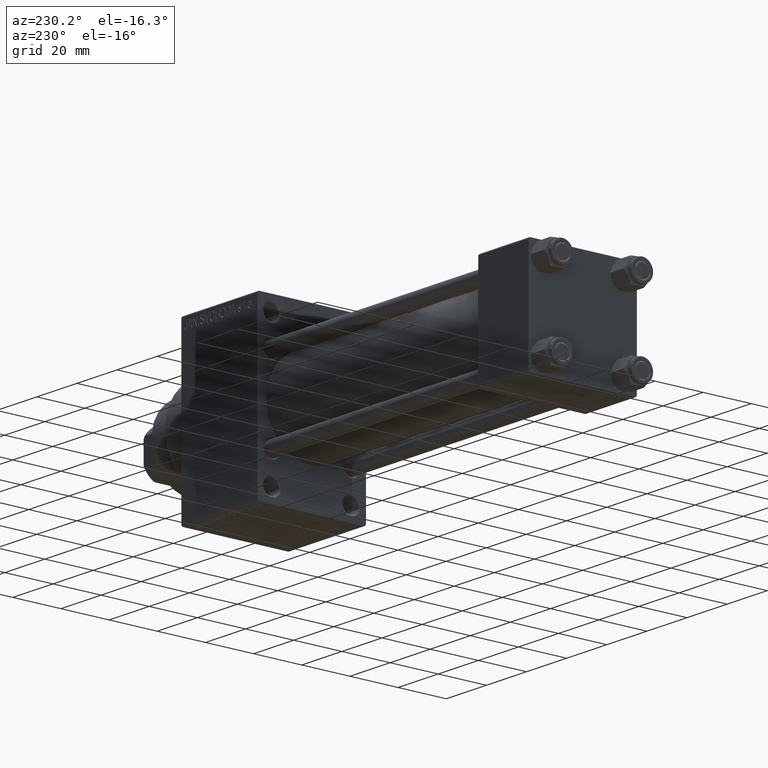
[diagram: clean part render]
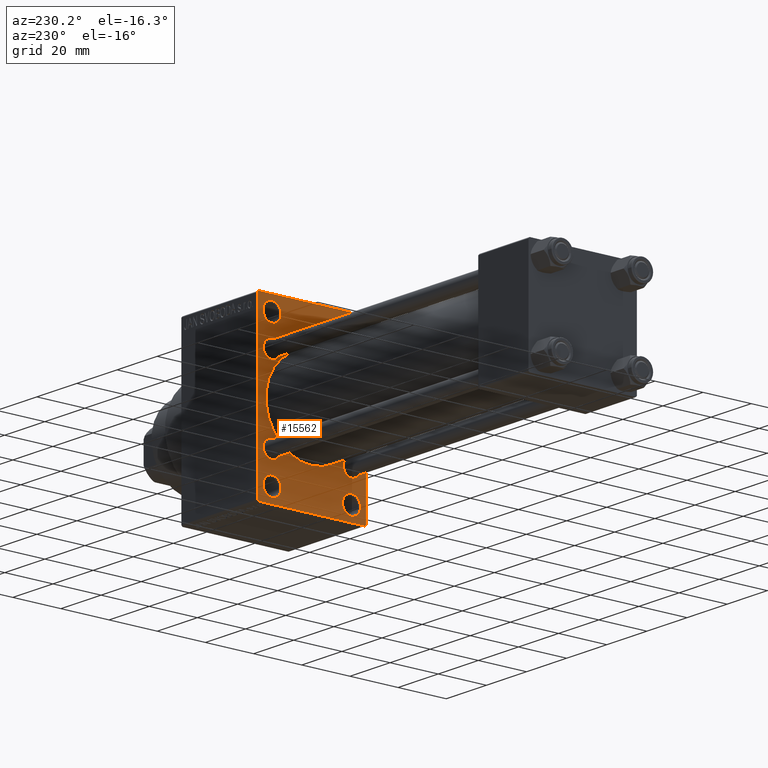
[diagram: same view with one face highlighted and labeled with its STEP entity id]
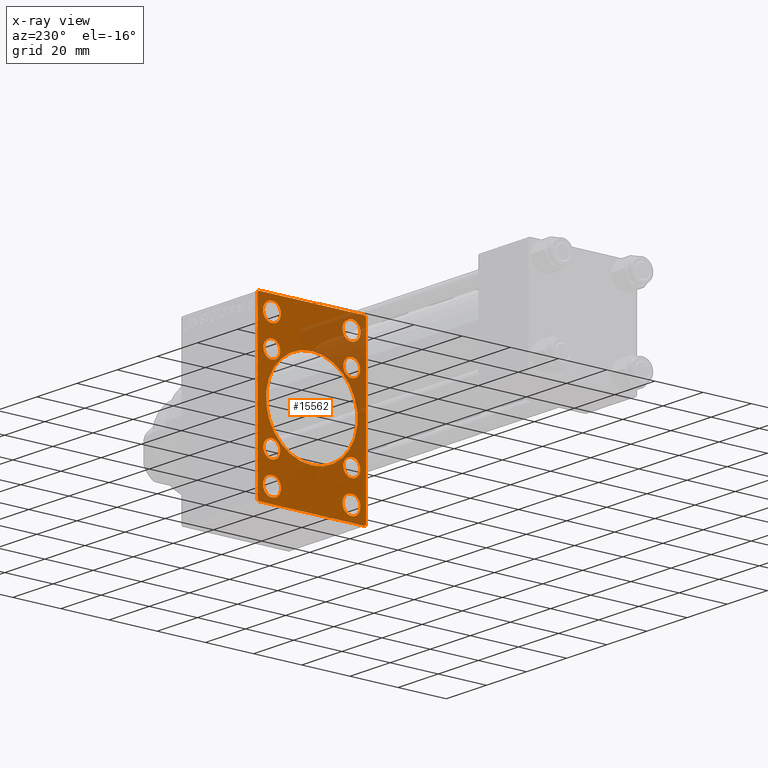
[diagram: x-ray of the same camera — body ghosted, the highlighted face saturated]
A machine part, auxiliary view. The second image highlights one B-rep face of the part: STEP entity #15562.
The next image is the same camera in x-ray: the body ghosted, the highlighted face saturated — about 26% of this face is hidden behind the body in this view.
In plain terms, the highlighted planar face has unit normal (-1, 0, 0).
Its self-contained STEP definition (entity closure, byte-faithful):
#120 = LINE ( 'NONE', #46832, #43800 ) ;
#528 = AXIS2_PLACEMENT_3D ( 'NONE', #10171, #24667, #14204 ) ;
#907 = ORIENTED_EDGE ( 'NONE', *, *, #25941, .T. ) ;
#1032 = EDGE_CURVE ( 'NONE', #6648, #13076, #45790, .T. ) ;
#1408 = ORIENTED_EDGE ( 'NONE', *, *, #33569, .T. ) ;
#1797 = CARTESIAN_POINT ( 'NONE',  ( 135.0000000000000000, 28.49999999999999645, 28.49999999999999645 ) ) ;
#1901 = DIRECTION ( 'NONE',  ( 1.000000000000000000, 0.000000000000000000, 0.000000000000000000 ) ) ;
#1970 = CARTESIAN_POINT ( 'NONE',  ( 135.0000000000000000, -22.00000000000001776, 35.00000000000000000 ) ) ;
#2010 = DIRECTION ( 'NONE',  ( 0.000000000000000000, 0.000000000000000000, 1.000000000000000000 ) ) ;
#2049 = VERTEX_POINT ( 'NONE', #16707 ) ;
#2135 = EDGE_LOOP ( 'NONE', ( #36572, #13854 ) ) ;
#2259 = DIRECTION ( 'NONE',  ( 1.000000000000000000, 0.000000000000000000, 0.000000000000000000 ) ) ;
#2374 = ORIENTED_EDGE ( 'NONE', *, *, #21547, .T. ) ;
#2660 = CIRCLE ( 'NONE', #30045, 3.750000000000006661 ) ;
#2767 = DIRECTION ( 'NONE',  ( -1.000000000000000000, 0.000000000000000000, -0.000000000000000000 ) ) ;
#2940 = CARTESIAN_POINT ( 'NONE',  ( 135.0000000000000000, 16.50000000000000000, 32.75000000000000000 ) ) ;
#2963 = ORIENTED_EDGE ( 'NONE', *, *, #43526, .T. ) ;
#3117 = EDGE_CURVE ( 'NONE', #28699, #42870, #9323, .T. ) ;
#3155 = AXIS2_PLACEMENT_3D ( 'NONE', #45974, #1901, #16435 ) ;
#3344 = CIRCLE ( 'NONE', #20072, 3.750000000000006661 ) ;
#3425 = CARTESIAN_POINT ( 'NONE',  ( 135.0000000000000000, -16.50000000000000000, -28.99999999999999289 ) ) ;
#3782 = VERTEX_POINT ( 'NONE', #8012 ) ;
#4051 = CIRCLE ( 'NONE', #10135, 3.500000000000006661 ) ;
#4099 = DIRECTION ( 'NONE',  ( 1.000000000000000000, 0.000000000000000000, 0.000000000000000000 ) ) ;
#4196 = EDGE_CURVE ( 'NONE', #45407, #44804, #10835, .T. ) ;
#4202 = DIRECTION ( 'NONE',  ( 0.000000000000000000, 0.000000000000000000, 1.000000000000000000 ) ) ;
#4321 = ORIENTED_EDGE ( 'NONE', *, *, #10856, .T. ) ;
#4336 = CARTESIAN_POINT ( 'NONE',  ( 135.0000000000000000, -16.50000000000000000, -28.99999999999999289 ) ) ;
#4574 = AXIS2_PLACEMENT_3D ( 'NONE', #42211, #27196, #34814 ) ;
#4772 = FACE_BOUND ( 'NONE', #6205, .T. ) ;
#4868 = VERTEX_POINT ( 'NONE', #37428 ) ;
#5090 = CARTESIAN_POINT ( 'NONE',  ( 135.0000000000000000, -16.50000000000000000, -25.24999999999998934 ) ) ;
#5343 = CIRCLE ( 'NONE', #29642, 3.750000000000003553 ) ;
#5369 = DIRECTION ( 'NONE',  ( 0.000000000000000000, 0.7071067811865474617, -0.7071067811865474617 ) ) ;
#5556 = CARTESIAN_POINT ( 'NONE',  ( 135.0000000000000000, -28.50000000000062883, 28.49999999999905143 ) ) ;
#5766 = AXIS2_PLACEMENT_3D ( 'NONE', #7516, #37055, #15135 ) ;
#5839 = CARTESIAN_POINT ( 'NONE',  ( 135.0000000000000000, -16.59999999999999076, -16.60000000000000853 ) ) ;
#5955 = EDGE_LOOP ( 'NONE', ( #907, #2374 ) ) ;
#6033 = VECTOR ( 'NONE', #11920, 1000.000000000000000 ) ;
#6205 = EDGE_LOOP ( 'NONE', ( #32259, #40428 ) ) ;
#6648 = VERTEX_POINT ( 'NONE', #39135 ) ;
#6730 = AXIS2_PLACEMENT_3D ( 'NONE', #15054, #4099, #32200 ) ;
#6787 = ORIENTED_EDGE ( 'NONE', *, *, #47059, .T. ) ;
#7516 = CARTESIAN_POINT ( 'NONE',  ( 135.0000000000000000, -16.50000000000000000, 29.00000000000000711 ) ) ;
#7531 = DIRECTION ( 'NONE',  ( 1.000000000000000000, 0.000000000000000000, 0.000000000000000000 ) ) ;
#7676 = CARTESIAN_POINT ( 'NONE',  ( 135.0000000000000000, 21.99999999999999645, 35.00000000000000000 ) ) ;
#7692 = EDGE_CURVE ( 'NONE', #34021, #39647, #23655, .T. ) ;
#8012 = CARTESIAN_POINT ( 'NONE',  ( 135.0000000000000000, -22.50000000000000355, -34.50000000000000000 ) ) ;
#8515 = EDGE_CURVE ( 'NONE', #42709, #35263, #3344, .T. ) ;
#8544 = AXIS2_PLACEMENT_3D ( 'NONE', #30092, #11996, #26500 ) ;
#8622 = CARTESIAN_POINT ( 'NONE',  ( 135.0000000000000000, 16.59999999999999787, -16.60000000000000497 ) ) ;
#8815 = FACE_BOUND ( 'NONE', #5955, .T. ) ;
#9323 = CIRCLE ( 'NONE', #28315, 3.750000000000000000 ) ;
#9383 = CARTESIAN_POINT ( 'NONE',  ( 135.0000000000000000, 22.49999999999999645, 34.50000000000000000 ) ) ;
#9560 = EDGE_CURVE ( 'NONE', #23354, #40723, #15569, .T. ) ;
#9685 = EDGE_CURVE ( 'NONE', #35263, #42709, #2660, .T. ) ;
#9752 = ORIENTED_EDGE ( 'NONE', *, *, #25067, .T. ) ;
#9841 = AXIS2_PLACEMENT_3D ( 'NONE', #31536, #24136, #2010 ) ;
#10134 = CARTESIAN_POINT ( 'NONE',  ( 135.0000000000000000, -16.50000000000000000, 32.75000000000000711 ) ) ;
#10135 = AXIS2_PLACEMENT_3D ( 'NONE', #37299, #7531, #4202 ) ;
#10171 = CARTESIAN_POINT ( 'NONE',  ( 135.0000000000000000, 16.50000000000000000, -28.99999999999999289 ) ) ;
#10195 = VECTOR ( 'NONE', #12019, 1000.000000000000000 ) ;
#10413 = LINE ( 'NONE', #21355, #11837 ) ;
#10835 = CIRCLE ( 'NONE', #43556, 3.500000000000006661 ) ;
#10856 = EDGE_CURVE ( 'NONE', #2049, #3782, #10413, .T. ) ;
#11122 = VERTEX_POINT ( 'NONE', #1970 ) ;
#11558 = CIRCLE ( 'NONE', #8544, 3.750000000000003553 ) ;
#11690 = DIRECTION ( 'NONE',  ( 1.000000000000000000, 0.000000000000000000, 0.000000000000000000 ) ) ;
#11747 = CARTESIAN_POINT ( 'NONE',  ( 135.0000000000000000, 16.59999999999999787, -13.09999999999999787 ) ) ;
#11837 = VECTOR ( 'NONE', #22054, 1000.000000000000114 ) ;
#11920 = DIRECTION ( 'NONE',  ( 0.000000000000000000, 0.000000000000000000, -1.000000000000000000 ) ) ;
#11959 = DIRECTION ( 'NONE',  ( 0.000000000000000000, 0.000000000000000000, 1.000000000000000000 ) ) ;
#11996 = DIRECTION ( 'NONE',  ( 1.000000000000000000, 0.000000000000000000, 0.000000000000000000 ) ) ;
#12019 = DIRECTION ( 'NONE',  ( -0.000000000000000000, -0.7071067811865279218, -0.7071067811865671127 ) ) ;
#12053 = LINE ( 'NONE', #1797, #23038 ) ;
#12543 = AXIS2_PLACEMENT_3D ( 'NONE', #25512, #25745, #28855 ) ;
#12746 = VERTEX_POINT ( 'NONE', #27053 ) ;
#13076 = VERTEX_POINT ( 'NONE', #41307 ) ;
#13455 = DIRECTION ( 'NONE',  ( 0.000000000000000000, 0.000000000000000000, 1.000000000000000000 ) ) ;
#13562 = VERTEX_POINT ( 'NONE', #45012 ) ;
#13854 = ORIENTED_EDGE ( 'NONE', *, *, #18381, .T. ) ;
#14204 = DIRECTION ( 'NONE',  ( 0.000000000000000000, 0.000000000000000000, 1.000000000000000000 ) ) ;
#14377 = DIRECTION ( 'NONE',  ( 1.000000000000000000, 0.000000000000000000, 0.000000000000000000 ) ) ;
#14483 = ORIENTED_EDGE ( 'NONE', *, *, #14953, .F. ) ;
#14601 = CARTESIAN_POINT ( 'NONE',  ( 135.0000000000000000, 22.00000000000002132, -35.00000000000000000 ) ) ;
#14953 = EDGE_CURVE ( 'NONE', #40209, #3782, #120, .T. ) ;
#15054 = CARTESIAN_POINT ( 'NONE',  ( 135.0000000000000000, -16.59999999999999076, 16.60000000000000853 ) ) ;
#15135 = DIRECTION ( 'NONE',  ( 0.000000000000000000, 0.000000000000000000, 1.000000000000000000 ) ) ;
#15562 = ADVANCED_FACE ( 'NONE', ( #37405, #37167, #15727, #18832, #45029, #4772, #26904, #41452, #8815, #23321 ), #28702, .T. ) ;
#15569 = CIRCLE ( 'NONE', #12543, 3.500000000000003109 ) ;
#15584 = CARTESIAN_POINT ( 'NONE',  ( 135.0000000000000000, 16.50000000000000000, 29.00000000000000355 ) ) ;
#15727 = FACE_BOUND ( 'NONE', #2135, .T. ) ;
#15803 = EDGE_CURVE ( 'NONE', #42870, #28699, #22483, .T. ) ;
#15907 = CARTESIAN_POINT ( 'NONE',  ( 135.0000000000000000, -2.752562955852396712E-16, -19.00000000000000000 ) ) ;
#15920 = CIRCLE ( 'NONE', #32628, 3.500000000000006661 ) ;
#16435 = DIRECTION ( 'NONE',  ( 0.000000000000000000, 0.000000000000000000, 1.000000000000000000 ) ) ;
#16607 = DIRECTION ( 'NONE',  ( 0.000000000000000000, 0.000000000000000000, -1.000000000000000000 ) ) ;
#16707 = CARTESIAN_POINT ( 'NONE',  ( 135.0000000000000000, -21.99999999999998934, -35.00000000000000000 ) ) ;
#16774 = EDGE_CURVE ( 'NONE', #39647, #2049, #29415, .T. ) ;
#16961 = CIRCLE ( 'NONE', #35111, 3.500000000000006661 ) ;
#17414 = ORIENTED_EDGE ( 'NONE', *, *, #9685, .T. ) ;
#17704 = AXIS2_PLACEMENT_3D ( 'NONE', #33904, #19835, #45351 ) ;
#17948 = DIRECTION ( 'NONE',  ( 0.000000000000000000, 0.000000000000000000, 1.000000000000000000 ) ) ;
#18381 = EDGE_CURVE ( 'NONE', #13076, #6648, #45391, .T. ) ;
#18832 = FACE_BOUND ( 'NONE', #26870, .T. ) ;
#18861 = DIRECTION ( 'NONE',  ( 1.000000000000000000, 0.000000000000000000, 0.000000000000000000 ) ) ;
#18993 = VERTEX_POINT ( 'NONE', #2940 ) ;
#19101 = DIRECTION ( 'NONE',  ( 1.000000000000000000, 0.000000000000000000, 0.000000000000000000 ) ) ;
#19384 = DIRECTION ( 'NONE',  ( 1.000000000000000000, 0.000000000000000000, 0.000000000000000000 ) ) ;
#19835 = DIRECTION ( 'NONE',  ( 1.000000000000000000, 0.000000000000000000, 0.000000000000000000 ) ) ;
#20059 = CARTESIAN_POINT ( 'NONE',  ( 135.0000000000000000, 22.49999999999999645, 35.00000000000000000 ) ) ;
#20072 = AXIS2_PLACEMENT_3D ( 'NONE', #3425, #32476, #32715 ) ;
#20521 = ORIENTED_EDGE ( 'NONE', *, *, #44014, .T. ) ;
#21092 = EDGE_LOOP ( 'NONE', ( #30857, #27063 ) ) ;
#21239 = CARTESIAN_POINT ( 'NONE',  ( 135.0000000000000000, -16.50000000000000000, 25.25000000000000711 ) ) ;
#21355 = CARTESIAN_POINT ( 'NONE',  ( 135.0000000000000000, -28.49999999999999645, -28.49999999999999645 ) ) ;
#21496 = VERTEX_POINT ( 'NONE', #15907 ) ;
#21516 = CARTESIAN_POINT ( 'NONE',  ( 135.0000000000000000, 16.59999999999999787, 16.60000000000000497 ) ) ;
#21547 = EDGE_CURVE ( 'NONE', #21496, #26890, #43199, .T. ) ;
#21780 = EDGE_LOOP ( 'NONE', ( #6787, #1408 ) ) ;
#21788 = CARTESIAN_POINT ( 'NONE',  ( 135.0000000000000000, 22.49999999999999645, -35.00000000000000000 ) ) ;
#21983 = EDGE_CURVE ( 'NONE', #35451, #11122, #23620, .T. ) ;
#22054 = DIRECTION ( 'NONE',  ( 0.000000000000000000, -0.7071067811865474617, 0.7071067811865474617 ) ) ;
#22483 = CIRCLE ( 'NONE', #5766, 3.750000000000000000 ) ;
#22694 = ORIENTED_EDGE ( 'NONE', *, *, #8515, .T. ) ;
#23038 = VECTOR ( 'NONE', #5369, 1000.000000000000114 ) ;
#23321 = FACE_OUTER_BOUND ( 'NONE', #29998, .T. ) ;
#23354 = VERTEX_POINT ( 'NONE', #25156 ) ;
#23358 = ORIENTED_EDGE ( 'NONE', *, *, #9560, .T. ) ;
#23418 = AXIS2_PLACEMENT_3D ( 'NONE', #23740, #24199, #16607 ) ;
#23553 = DIRECTION ( 'NONE',  ( -0.000000000000000000, 0.000000000000000000, 1.000000000000000000 ) ) ;
#23559 = CIRCLE ( 'NONE', #4574, 19.00000000000000000 ) ;
#23620 = LINE ( 'NONE', #20059, #36355 ) ;
#23655 = LINE ( 'NONE', #41314, #10195 ) ;
#23725 = ORIENTED_EDGE ( 'NONE', *, *, #21983, .F. ) ;
#23740 = CARTESIAN_POINT ( 'NONE',  ( 135.0000000000000000, -2.602085213965210642E-15, 0.000000000000000000 ) ) ;
#23764 = VERTEX_POINT ( 'NONE', #9383 ) ;
#24012 = AXIS2_PLACEMENT_3D ( 'NONE', #38344, #2767, #23553 ) ;
#24136 = DIRECTION ( 'NONE',  ( 1.000000000000000000, 0.000000000000000000, 0.000000000000000000 ) ) ;
#24199 = DIRECTION ( 'NONE',  ( 1.000000000000000000, 0.000000000000000000, 0.000000000000000000 ) ) ;
#24667 = DIRECTION ( 'NONE',  ( 1.000000000000000000, 0.000000000000000000, 0.000000000000000000 ) ) ;
#24849 = CARTESIAN_POINT ( 'NONE',  ( 135.0000000000000000, -2.602085213965210642E-15, 19.00000000000000000 ) ) ;
#25067 = EDGE_CURVE ( 'NONE', #23764, #34021, #30015, .T. ) ;
#25156 = CARTESIAN_POINT ( 'NONE',  ( 135.0000000000000000, -16.59999999999999076, 13.10000000000000142 ) ) ;
#25485 = CARTESIAN_POINT ( 'NONE',  ( 135.0000000000000000, -16.50000000000000000, 29.00000000000000711 ) ) ;
#25512 = CARTESIAN_POINT ( 'NONE',  ( 135.0000000000000000, -16.59999999999999076, 16.60000000000000853 ) ) ;
#25592 = DIRECTION ( 'NONE',  ( 0.000000000000000000, -1.000000000000000000, 0.000000000000000000 ) ) ;
#25694 = ORIENTED_EDGE ( 'NONE', *, *, #7692, .T. ) ;
#25731 = EDGE_CURVE ( 'NONE', #12746, #28933, #47115, .T. ) ;
#25745 = DIRECTION ( 'NONE',  ( 1.000000000000000000, 0.000000000000000000, 0.000000000000000000 ) ) ;
#25941 = EDGE_CURVE ( 'NONE', #26890, #21496, #23559, .T. ) ;
#26120 = ORIENTED_EDGE ( 'NONE', *, *, #32424, .T. ) ;
#26500 = DIRECTION ( 'NONE',  ( 0.000000000000000000, 0.000000000000000000, 1.000000000000000000 ) ) ;
#26870 = EDGE_LOOP ( 'NONE', ( #20521, #44585 ) ) ;
#26890 = VERTEX_POINT ( 'NONE', #24849 ) ;
#26904 = FACE_BOUND ( 'NONE', #21780, .T. ) ;
#27053 = CARTESIAN_POINT ( 'NONE',  ( 135.0000000000000000, -16.59999999999999076, -20.10000000000001208 ) ) ;
#27063 = ORIENTED_EDGE ( 'NONE', *, *, #15803, .T. ) ;
#27196 = DIRECTION ( 'NONE',  ( 1.000000000000000000, 0.000000000000000000, 0.000000000000000000 ) ) ;
#27545 = ORIENTED_EDGE ( 'NONE', *, *, #25731, .T. ) ;
#27661 = EDGE_LOOP ( 'NONE', ( #26120, #23358 ) ) ;
#28315 = AXIS2_PLACEMENT_3D ( 'NONE', #25485, #11690, #29306 ) ;
#28699 = VERTEX_POINT ( 'NONE', #10134 ) ;
#28702 = PLANE ( 'NONE',  #24012 ) ;
#28765 = ORIENTED_EDGE ( 'NONE', *, *, #16774, .T. ) ;
#28855 = DIRECTION ( 'NONE',  ( 0.000000000000000000, 0.000000000000000000, 1.000000000000000000 ) ) ;
#28933 = VERTEX_POINT ( 'NONE', #32440 ) ;
#29306 = DIRECTION ( 'NONE',  ( 0.000000000000000000, 0.000000000000000000, 1.000000000000000000 ) ) ;
#29407 = DIRECTION ( 'NONE',  ( 0.000000000000000000, 0.000000000000000000, -1.000000000000000000 ) ) ;
#29415 = LINE ( 'NONE', #21788, #38508 ) ;
#29642 = AXIS2_PLACEMENT_3D ( 'NONE', #15584, #19384, #33674 ) ;
#29998 = EDGE_LOOP ( 'NONE', ( #28765, #4321, #14483, #34161, #23725, #2963, #9752, #25694 ) ) ;
#30015 = LINE ( 'NONE', #44567, #6033 ) ;
#30045 = AXIS2_PLACEMENT_3D ( 'NONE', #4336, #18861, #30047 ) ;
#30047 = DIRECTION ( 'NONE',  ( 0.000000000000000000, 0.000000000000000000, 1.000000000000000000 ) ) ;
#30092 = CARTESIAN_POINT ( 'NONE',  ( 135.0000000000000000, 16.50000000000000000, 29.00000000000000355 ) ) ;
#30857 = ORIENTED_EDGE ( 'NONE', *, *, #3117, .T. ) ;
#31068 = CARTESIAN_POINT ( 'NONE',  ( 135.0000000000000000, -22.50000000000000355, 34.50000000000000000 ) ) ;
#31381 = CIRCLE ( 'NONE', #17704, 3.500000000000006661 ) ;
#31536 = CARTESIAN_POINT ( 'NONE',  ( 135.0000000000000000, -16.59999999999999076, -16.60000000000000853 ) ) ;
#32200 = DIRECTION ( 'NONE',  ( 0.000000000000000000, 0.000000000000000000, 1.000000000000000000 ) ) ;
#32259 = ORIENTED_EDGE ( 'NONE', *, *, #42595, .T. ) ;
#32424 = EDGE_CURVE ( 'NONE', #40723, #23354, #44800, .T. ) ;
#32440 = CARTESIAN_POINT ( 'NONE',  ( 135.0000000000000000, -16.59999999999999076, -13.10000000000000142 ) ) ;
#32476 = DIRECTION ( 'NONE',  ( 1.000000000000000000, 0.000000000000000000, 0.000000000000000000 ) ) ;
#32628 = AXIS2_PLACEMENT_3D ( 'NONE', #8622, #19101, #11959 ) ;
#32699 = VECTOR ( 'NONE', #41298, 1000.000000000000000 ) ;
#32715 = DIRECTION ( 'NONE',  ( 0.000000000000000000, 0.000000000000000000, 1.000000000000000000 ) ) ;
#33569 = EDGE_CURVE ( 'NONE', #4868, #39841, #15920, .T. ) ;
#33674 = DIRECTION ( 'NONE',  ( 0.000000000000000000, 0.000000000000000000, 1.000000000000000000 ) ) ;
#33904 = CARTESIAN_POINT ( 'NONE',  ( 135.0000000000000000, 16.59999999999999787, 16.60000000000000497 ) ) ;
#34021 = VERTEX_POINT ( 'NONE', #37624 ) ;
#34161 = ORIENTED_EDGE ( 'NONE', *, *, #35257, .T. ) ;
#34814 = DIRECTION ( 'NONE',  ( 0.000000000000000000, 0.000000000000000000, -1.000000000000000000 ) ) ;
#35111 = AXIS2_PLACEMENT_3D ( 'NONE', #5839, #2259, #13455 ) ;
#35161 = EDGE_CURVE ( 'NONE', #13562, #18993, #5343, .T. ) ;
#35257 = EDGE_CURVE ( 'NONE', #40209, #11122, #44878, .T. ) ;
#35263 = VERTEX_POINT ( 'NONE', #5090 ) ;
#35296 = DIRECTION ( 'NONE',  ( 0.000000000000000000, -1.000000000000000000, 0.000000000000000000 ) ) ;
#35451 = VERTEX_POINT ( 'NONE', #7676 ) ;
#35752 = EDGE_LOOP ( 'NONE', ( #17414, #22694 ) ) ;
#36355 = VECTOR ( 'NONE', #35296, 1000.000000000000000 ) ;
#36572 = ORIENTED_EDGE ( 'NONE', *, *, #1032, .T. ) ;
#37055 = DIRECTION ( 'NONE',  ( 1.000000000000000000, 0.000000000000000000, 0.000000000000000000 ) ) ;
#37167 = FACE_BOUND ( 'NONE', #35752, .T. ) ;
#37299 = CARTESIAN_POINT ( 'NONE',  ( 135.0000000000000000, 16.59999999999999787, -16.60000000000000497 ) ) ;
#37405 = FACE_BOUND ( 'NONE', #21092, .T. ) ;
#37428 = CARTESIAN_POINT ( 'NONE',  ( 135.0000000000000000, 16.59999999999999787, -20.10000000000000853 ) ) ;
#37624 = CARTESIAN_POINT ( 'NONE',  ( 135.0000000000000000, 22.49999999999999645, -34.50000000000000000 ) ) ;
#38344 = CARTESIAN_POINT ( 'NONE',  ( 135.0000000000000000, 0.000000000000000000, 0.000000000000000000 ) ) ;
#38508 = VECTOR ( 'NONE', #25592, 1000.000000000000000 ) ;
#39135 = CARTESIAN_POINT ( 'NONE',  ( 135.0000000000000000, 16.50000000000000000, -25.24999999999998934 ) ) ;
#39647 = VERTEX_POINT ( 'NONE', #14601 ) ;
#39841 = VERTEX_POINT ( 'NONE', #11747 ) ;
#40209 = VERTEX_POINT ( 'NONE', #31068 ) ;
#40428 = ORIENTED_EDGE ( 'NONE', *, *, #4196, .T. ) ;
#40723 = VERTEX_POINT ( 'NONE', #45627 ) ;
#41298 = DIRECTION ( 'NONE',  ( -0.000000000000000000, 0.7071067811865279218, 0.7071067811865671127 ) ) ;
#41307 = CARTESIAN_POINT ( 'NONE',  ( 135.0000000000000000, 16.50000000000000000, -32.75000000000000000 ) ) ;
#41314 = CARTESIAN_POINT ( 'NONE',  ( 135.0000000000000000, 28.50000000000061817, -28.49999999999904077 ) ) ;
#41452 = FACE_BOUND ( 'NONE', #44210, .T. ) ;
#42211 = CARTESIAN_POINT ( 'NONE',  ( 135.0000000000000000, -2.602085213965210642E-15, 0.000000000000000000 ) ) ;
#42595 = EDGE_CURVE ( 'NONE', #44804, #45407, #31381, .T. ) ;
#42709 = VERTEX_POINT ( 'NONE', #45818 ) ;
#42870 = VERTEX_POINT ( 'NONE', #21239 ) ;
#43199 = CIRCLE ( 'NONE', #23418, 19.00000000000000000 ) ;
#43526 = EDGE_CURVE ( 'NONE', #35451, #23764, #12053, .T. ) ;
#43556 = AXIS2_PLACEMENT_3D ( 'NONE', #21516, #14377, #17948 ) ;
#43719 = EDGE_CURVE ( 'NONE', #28933, #12746, #16961, .T. ) ;
#43800 = VECTOR ( 'NONE', #29407, 1000.000000000000000 ) ;
#44014 = EDGE_CURVE ( 'NONE', #18993, #13562, #11558, .T. ) ;
#44210 = EDGE_LOOP ( 'NONE', ( #46831, #27545 ) ) ;
#44310 = CARTESIAN_POINT ( 'NONE',  ( 135.0000000000000000, 16.59999999999999787, 13.09999999999999609 ) ) ;
#44424 = CARTESIAN_POINT ( 'NONE',  ( 135.0000000000000000, 16.59999999999999787, 20.10000000000001208 ) ) ;
#44567 = CARTESIAN_POINT ( 'NONE',  ( 135.0000000000000000, 22.49999999999999645, 35.00000000000000000 ) ) ;
#44585 = ORIENTED_EDGE ( 'NONE', *, *, #35161, .T. ) ;
#44800 = CIRCLE ( 'NONE', #6730, 3.500000000000003109 ) ;
#44804 = VERTEX_POINT ( 'NONE', #44424 ) ;
#44878 = LINE ( 'NONE', #5556, #32699 ) ;
#45012 = CARTESIAN_POINT ( 'NONE',  ( 135.0000000000000000, 16.50000000000000000, 25.25000000000000355 ) ) ;
#45029 = FACE_BOUND ( 'NONE', #27661, .T. ) ;
#45351 = DIRECTION ( 'NONE',  ( 0.000000000000000000, 0.000000000000000000, 1.000000000000000000 ) ) ;
#45391 = CIRCLE ( 'NONE', #528, 3.750000000000006661 ) ;
#45407 = VERTEX_POINT ( 'NONE', #44310 ) ;
#45627 = CARTESIAN_POINT ( 'NONE',  ( 135.0000000000000000, -16.59999999999999076, 20.10000000000001208 ) ) ;
#45790 = CIRCLE ( 'NONE', #3155, 3.750000000000006661 ) ;
#45818 = CARTESIAN_POINT ( 'NONE',  ( 135.0000000000000000, -16.50000000000000000, -32.75000000000000000 ) ) ;
#45974 = CARTESIAN_POINT ( 'NONE',  ( 135.0000000000000000, 16.50000000000000000, -28.99999999999999289 ) ) ;
#46831 = ORIENTED_EDGE ( 'NONE', *, *, #43719, .T. ) ;
#46832 = CARTESIAN_POINT ( 'NONE',  ( 135.0000000000000000, -22.50000000000000355, 35.00000000000000000 ) ) ;
#47059 = EDGE_CURVE ( 'NONE', #39841, #4868, #4051, .T. ) ;
#47115 = CIRCLE ( 'NONE', #9841, 3.500000000000006661 ) ;